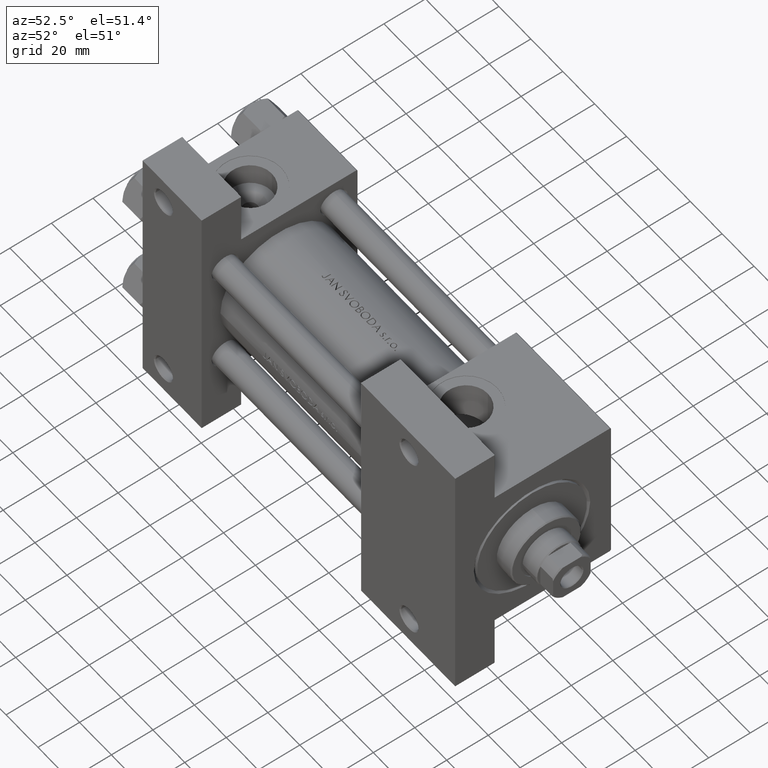
[diagram: clean part render]
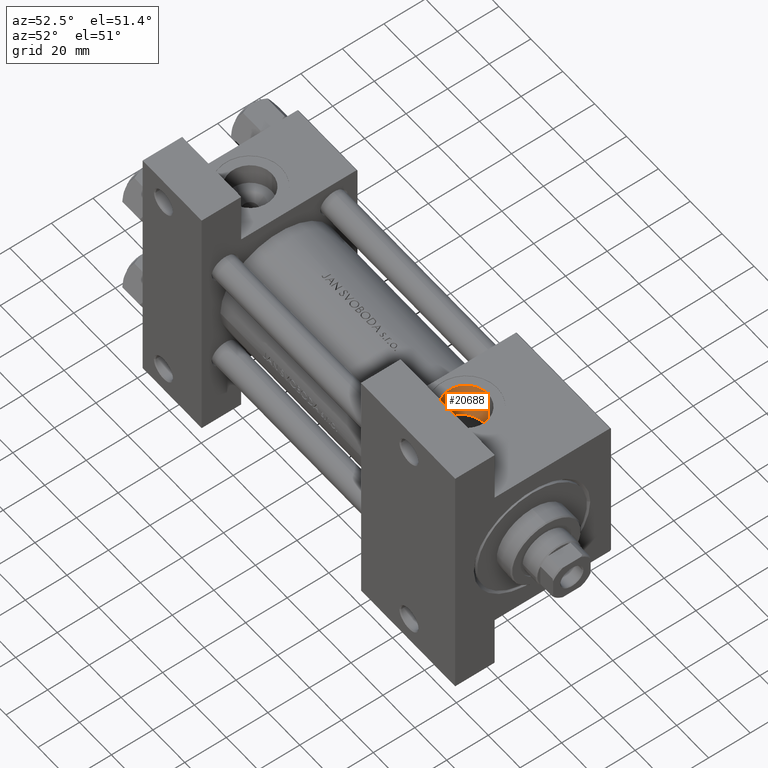
[diagram: same view with one face highlighted and labeled with its STEP entity id]
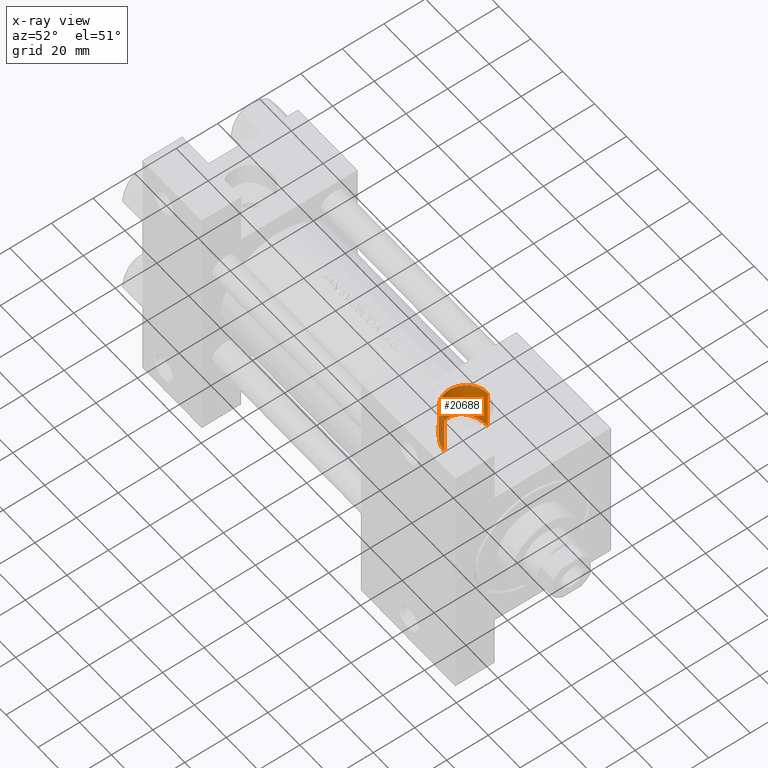
[diagram: x-ray of the same camera — body ghosted, the highlighted face saturated]
A machine part, auxiliary view. The second image highlights one B-rep face of the part: STEP entity #20688.
The next image is the same camera in x-ray: the body ghosted, the highlighted face saturated — about 22% of this face is hidden behind the body in this view.
In plain terms, the highlighted cylindrical surface (edge-blend (fillet) strip) has radius 10.48 mm, axis along (-0, -0, 1).
Its self-contained STEP definition (entity closure, byte-faithful):
#214 = CARTESIAN_POINT ( 'NONE',  ( 154.0000000000000284, 37.50100000000000477, -10.47999999999997556 ) ) ;
#2623 = CARTESIAN_POINT ( 'NONE',  ( 152.6018487986953005, -17.94656342485971834, -10.40934886090304268 ) ) ;
#2874 = CARTESIAN_POINT ( 'NONE',  ( 147.0925800491787072, -18.70257500022392350, 7.909780117561131085 ) ) ;
#3120 = CARTESIAN_POINT ( 'NONE',  ( 143.6144618885458328, -20.41033060918976361, 1.446801902193837197 ) ) ;
#3285 = VECTOR ( 'NONE', #7080, 1000.000000000000000 ) ;
#3366 = CARTESIAN_POINT ( 'NONE',  ( 144.5840202247433979, -20.08544715864210417, -4.651927720320701454 ) ) ;
#3615 = CARTESIAN_POINT ( 'NONE',  ( 143.6681735545247136, -20.37457923911944846, 1.789747077269118414 ) ) ;
#3711 = LINE ( 'NONE', #214, #29229 ) ;
#3957 = ORIENTED_EDGE ( 'NONE', *, *, #39067, .T. ) ;
#4563 = CARTESIAN_POINT ( 'NONE',  ( 154.0000000000000284, -37.29999999999999716, -10.47999999999998266 ) ) ;
#6621 = CARTESIAN_POINT ( 'NONE',  ( 143.5830884358184107, -20.49411676436529817, -1.342674851160320149 ) ) ;
#6870 = CARTESIAN_POINT ( 'NONE',  ( 145.7233602415656151, -19.29242988523072455, 6.437503504559506595 ) ) ;
#7080 = DIRECTION ( 'NONE',  ( -0.000000000000000000, -1.000000000000000000, -8.673617379884036705E-17 ) ) ;
#7117 = CARTESIAN_POINT ( 'NONE',  ( 153.3044545345210850, -17.31154528053462016, 10.47999999999999154 ) ) ;
#10109 = CARTESIAN_POINT ( 'NONE',  ( 147.6096037740494751, -18.50380750299995469, 8.333875197508971766 ) ) ;
#10354 = CARTESIAN_POINT ( 'NONE',  ( 147.8618195419076926, -18.87524337706392785, -8.501152861621342538 ) ) ;
#10598 = CARTESIAN_POINT ( 'NONE',  ( 146.1545344758438034, -19.09783805311036886, 6.956499678098870376 ) ) ;
#10851 = CARTESIAN_POINT ( 'NONE',  ( 144.1012934303699353, -20.11685413836228520, 3.459060791729259066 ) ) ;
#11092 = CARTESIAN_POINT ( 'NONE',  ( 151.2485181366845097, -18.10389330548456144, -10.11833674566095986 ) ) ;
#11208 = CYLINDRICAL_SURFACE ( 'NONE', #46063, 10.47999999999998622 ) ;
#12112 = CARTESIAN_POINT ( 'NONE',  ( 154.0000000000000284, -17.31154528053461306, 10.47999999999999154 ) ) ;
#13621 = CIRCLE ( 'NONE', #37512, 10.47999999999998622 ) ;
#13829 = CARTESIAN_POINT ( 'NONE',  ( 144.6245642930966255, -19.83139452378803469, 4.733173975255226651 ) ) ;
#14084 = CARTESIAN_POINT ( 'NONE',  ( 151.5877247240034364, -17.48338598744718198, 10.20456839096644686 ) ) ;
#14156 = CARTESIAN_POINT ( 'NONE',  ( 154.0000000000000284, -17.90669148670408362, -10.47999999999998089 ) ) ;
#14328 = CARTESIAN_POINT ( 'NONE',  ( 145.4759556616729128, -19.72067553347482871, -6.106406543856691904 ) ) ;
#14572 = CARTESIAN_POINT ( 'NONE',  ( 150.2574528650404773, -18.27226487592814408, -9.794965196591777001 ) ) ;
#14826 = CARTESIAN_POINT ( 'NONE',  ( 146.1121230715596369, -19.47452367214849644, -6.908494176797778330 ) ) ;
#16527 = EDGE_CURVE ( 'NONE', #47133, #16799, #3711, .T. ) ;
#16799 = VERTEX_POINT ( 'NONE', #4563 ) ;
#17764 = LINE ( 'NONE', #26267, #3285 ) ;
#17796 = CARTESIAN_POINT ( 'NONE',  ( 144.1894306476517613, -20.25102656977830762, -3.701459934073187519 ) ) ;
#18050 = CARTESIAN_POINT ( 'NONE',  ( 149.3335954883717989, -17.94904599600547712, 9.408192873974197568 ) ) ;
#18073 = ORIENTED_EDGE ( 'NONE', *, *, #16527, .F. ) ;
#18305 = CARTESIAN_POINT ( 'NONE',  ( 150.5915143732481170, -17.65692230102833449, 9.916186572683967526 ) ) ;
#18394 = EDGE_LOOP ( 'NONE', ( #3957, #36128, #43572, #18073 ) ) ;
#18548 = CARTESIAN_POINT ( 'NONE',  ( 145.5187940887308287, -19.38832963419614686, 6.165523076675712311 ) ) ;
#18800 = CARTESIAN_POINT ( 'NONE',  ( 146.3390100190131875, -19.38994764023254547, -7.159155389767049904 ) ) ;
#20688 = ADVANCED_FACE ( 'NONE', ( #41834 ), #11208, .F. ) ;
#21797 = CARTESIAN_POINT ( 'NONE',  ( 146.8154452386611979, -19.21913497042929464, -7.637175280490517970 ) ) ;
#22051 = CARTESIAN_POINT ( 'NONE',  ( 148.7374011664607565, -18.12441261360090294, 9.088217275655875227 ) ) ;
#22295 = CARTESIAN_POINT ( 'NONE',  ( 154.0000000000000284, -17.31154528053461306, 10.47999999999999154 ) ) ;
#22546 = CARTESIAN_POINT ( 'NONE',  ( 153.2936450912457929, -17.90669148670408362, -10.47999999999997733 ) ) ;
#22909 = CARTESIAN_POINT ( 'NONE',  ( 154.0000000000000284, 37.50100000000000477, 9.974746723040443104E-15 ) ) ;
#25109 = DIRECTION ( 'NONE',  ( 0.000000000000000000, -1.000000000000000000, -8.673617379884036705E-17 ) ) ;
#25310 = CARTESIAN_POINT ( 'NONE',  ( 143.8085289422961637, -20.28709306372374144, 2.466525892830136346 ) ) ;
#25557 = CARTESIAN_POINT ( 'NONE',  ( 150.5836453213384800, -18.21117968299171963, -9.913622529243996340 ) ) ;
#25799 = CARTESIAN_POINT ( 'NONE',  ( 147.5874752611917984, -18.96115153041447243, -8.296067076494246351 ) ) ;
#25915 = VERTEX_POINT ( 'NONE', #12112 ) ;
#25918 = DIRECTION ( 'NONE',  ( -0.000000000000000000, -1.000000000000000000, -8.673617379884036705E-17 ) ) ;
#26053 = CARTESIAN_POINT ( 'NONE',  ( 146.3809730746911555, -18.99918516550075864, 7.203644680487137464 ) ) ;
#26267 = CARTESIAN_POINT ( 'NONE',  ( 154.0000000000000284, 37.50100000000000477, 10.47999999999999687 ) ) ;
#26305 = CARTESIAN_POINT ( 'NONE',  ( 143.7848721841020847, -20.41767756798353517, -2.366995833931131887 ) ) ;
#26973 = EDGE_CURVE ( 'NONE', #25915, #34191, #17764, .T. ) ;
#29229 = VECTOR ( 'NONE', #37572, 1000.000000000000000 ) ;
#29538 = CARTESIAN_POINT ( 'NONE',  ( 143.8700277560727159, -20.38347105376920254, -2.708475799773472747 ) ) ;
#29784 = CARTESIAN_POINT ( 'NONE',  ( 148.7109170005340957, -18.62590504215679488, -9.073138281531834437 ) ) ;
#31676 = EDGE_CURVE ( 'NONE', #34191, #16799, #13621, .T. ) ;
#33014 = CARTESIAN_POINT ( 'NONE',  ( 143.5411270509842439, -20.46474067275494235, 0.7514081746990727284 ) ) ;
#33510 = CARTESIAN_POINT ( 'NONE',  ( 143.5169168091323684, -20.51137673509301607, -0.6516029565374288346 ) ) ;
#33756 = CARTESIAN_POINT ( 'NONE',  ( 152.6144639565822274, -17.35559248084098982, 10.41144764597006223 ) ) ;
#34011 = CARTESIAN_POINT ( 'NONE',  ( 144.0726434498571109, -20.29999609518734971, -3.376354653621504109 ) ) ;
#34191 = VERTEX_POINT ( 'NONE', #41418 ) ;
#35801 = CARTESIAN_POINT ( 'NONE',  ( 154.0000000000000284, -37.29999999999999716, 3.486794186713383443E-15 ) ) ;
#36039 = DIRECTION ( 'NONE',  ( 0.000000000000000000, 0.000000000000000000, -1.000000000000000000 ) ) ;
#36128 = ORIENTED_EDGE ( 'NONE', *, *, #26973, .T. ) ;
#36977 = CARTESIAN_POINT ( 'NONE',  ( 143.5217053303388184, -20.48332967077006828, 0.3975496392329738171 ) ) ;
#37232 = CARTESIAN_POINT ( 'NONE',  ( 149.3089432184007990, -18.47132649600307275, -9.396531025392599545 ) ) ;
#37512 = AXIS2_PLACEMENT_3D ( 'NONE', #35801, #25109, #36039 ) ;
#37572 = DIRECTION ( 'NONE',  ( -0.000000000000000000, -1.000000000000000000, -8.673617379884036705E-17 ) ) ;
#37729 = CARTESIAN_POINT ( 'NONE',  ( 147.0649927009444866, -19.13289277132431465, -7.864532804023773416 ) ) ;
#39067 = EDGE_CURVE ( 'NONE', #47133, #25915, #46799, .T. ) ;
#40727 = CARTESIAN_POINT ( 'NONE',  ( 145.6811096513063148, -19.63967553149033662, -6.382942706579978420 ) ) ;
#40973 = CARTESIAN_POINT ( 'NONE',  ( 144.9495768395414927, -19.66322346998767046, 5.326983638994161829 ) ) ;
#41225 = CARTESIAN_POINT ( 'NONE',  ( 151.2485603725488659, -17.53617776474739642, 10.11820687614873826 ) ) ;
#41418 = CARTESIAN_POINT ( 'NONE',  ( 154.0000000000000284, -37.29999999999999716, 10.47999999999998977 ) ) ;
#41834 = FACE_OUTER_BOUND ( 'NONE', #18394, .T. ) ;
#42081 = DIRECTION ( 'NONE',  ( 0.000000000000000000, 0.000000000000000000, -1.000000000000000000 ) ) ;
#43572 = ORIENTED_EDGE ( 'NONE', *, *, #31676, .T. ) ;
#44227 = CARTESIAN_POINT ( 'NONE',  ( 151.5843153394802130, -18.05810427117003059, -10.20365670940337033 ) ) ;
#44712 = CARTESIAN_POINT ( 'NONE',  ( 144.2215461673905281, -20.04967575897764220, 3.785508326117123623 ) ) ;
#44957 = CARTESIAN_POINT ( 'NONE',  ( 144.9055833317326289, -19.95017549749733377, -5.252667561004574992 ) ) ;
#45210 = CARTESIAN_POINT ( 'NONE',  ( 150.2712649677958439, -17.72514759185509092, 9.800086280978527853 ) ) ;
#46063 = AXIS2_PLACEMENT_3D ( 'NONE', #22909, #25918, #42081 ) ;
#46799 = B_SPLINE_CURVE_WITH_KNOTS ( 'NONE', 3,
 ( #48696, #22546, #2623, #44227, #11092, #25557, #14572, #37232, #29784, #10354, #25799, #37729, #21797, #18800, #14826, #40727, #14328, #44957, #3366, #17796, #34011, #29538, #26305, #6621, #33510, #36977, #33014, #3120, #3615, #25310, #48205, #10851, #44712, #13829, #40973, #18548, #6870, #10598, #26053, #2874, #10109, #22051, #18050, #45210, #18305, #41225, #14084, #33756, #7117, #22295 ),
 .UNSPECIFIED., .F., .F.,
 ( 4, 2, 2, 2, 2, 2, 2, 2, 2, 2, 2, 2, 2, 2, 2, 2, 2, 2, 2, 2, 2, 2, 2, 2, 4 ),
 ( 0.000000000000000000, 0.002085732680859664952, 0.003128599021289498079, 0.004171465361719330772, 0.006257198042578998760, 0.007300064383008865281, 0.008342930723438730933, 0.009385797063868595719, 0.01042866340429846224, 0.01251439608515819701, 0.01355726242558806353, 0.01460012876601793179, 0.01668586144687765616, 0.01772872778730751053, 0.01877159412773736838, 0.01981446046816722970, 0.02085732680859708754, 0.02294305948945683793, 0.02398592582988671312, 0.02502879217031658485, 0.02711452485117638728, 0.02920025753203618624, 0.03024312387246608919, 0.03128599021289599214, 0.03337172289375579803 ),
 .UNSPECIFIED. ) ;
#47133 = VERTEX_POINT ( 'NONE', #14156 ) ;
#48205 = CARTESIAN_POINT ( 'NONE',  ( 143.8951751743530849, -20.23535558307757398, 2.800358647656735034 ) ) ;
#48696 = CARTESIAN_POINT ( 'NONE',  ( 154.0000000000000284, -17.90669148670408362, -10.47999999999998089 ) ) ;